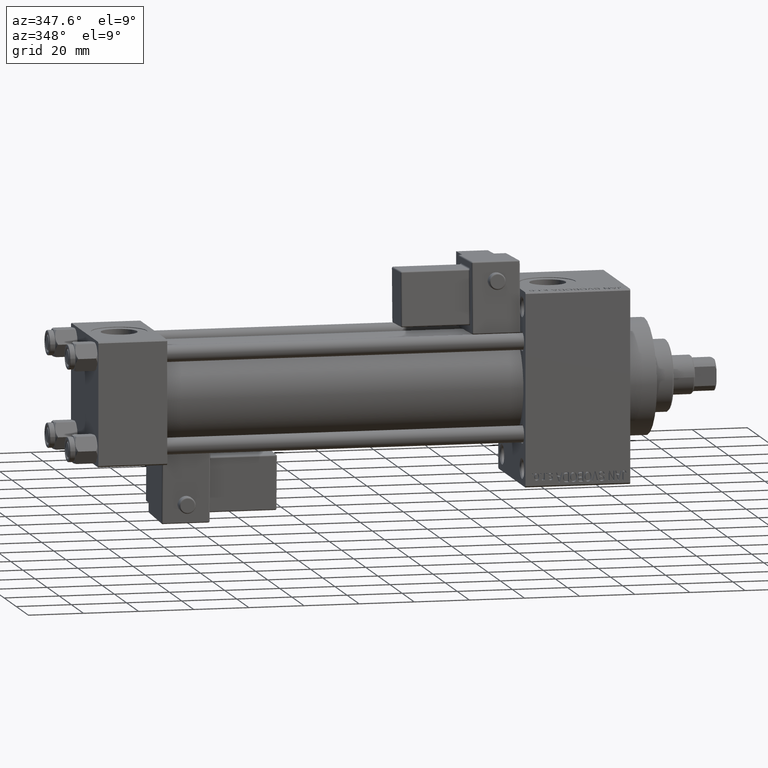
[diagram: clean part render]
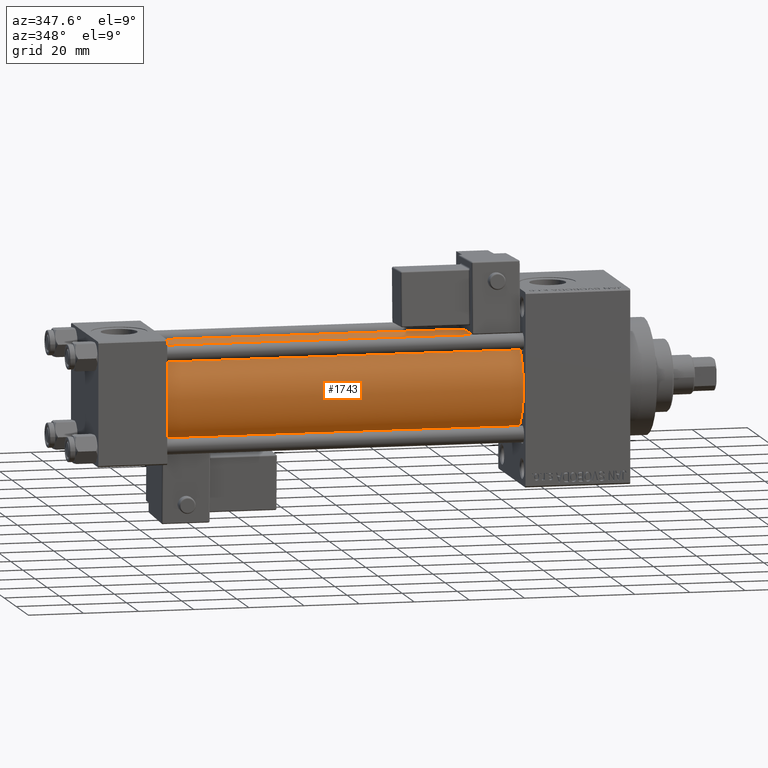
[diagram: same view with one face highlighted and labeled with its STEP entity id]
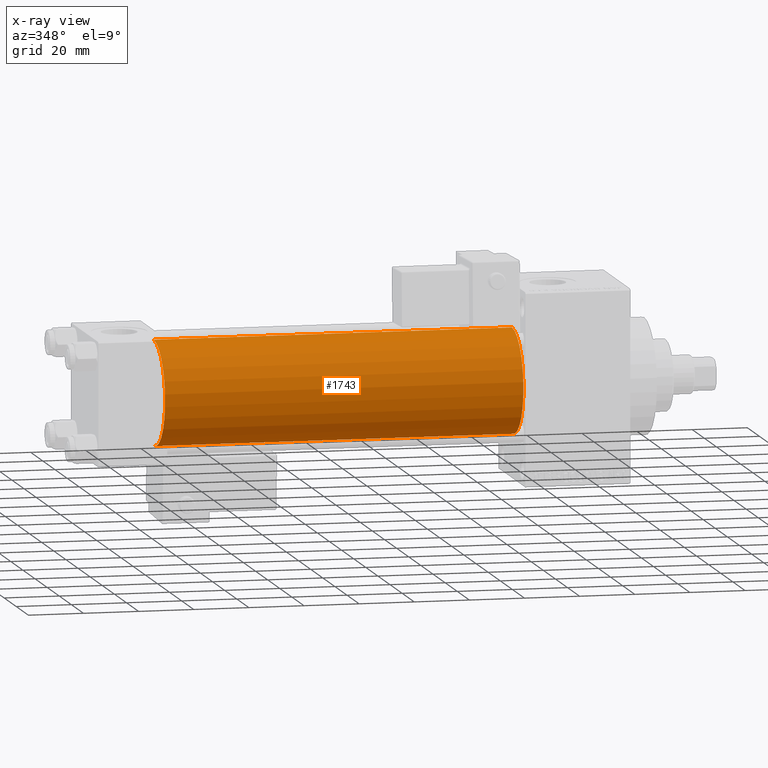
[diagram: x-ray of the same camera — body ghosted, the highlighted face saturated]
A machine part, auxiliary view. The second image highlights one B-rep face of the part: STEP entity #1743.
The next image is the same camera in x-ray: the body ghosted, the highlighted face saturated — about 0% of this face is hidden behind the body in this view.
In plain terms, the highlighted cylindrical surface (partial cylindrical patch) has radius 19 mm, axis along (-1, -0, -0).
Its self-contained STEP definition (entity closure, byte-faithful):
#1318 = DIRECTION ( 'NONE',  ( 0.000000000000000000, 0.000000000000000000, 1.000000000000000000 ) ) ;
#1567 = FACE_OUTER_BOUND ( 'NONE', #13857, .T. ) ;
#1743 = ADVANCED_FACE ( 'NONE', ( #1567 ), #39510, .T. ) ;
#3081 = ORIENTED_EDGE ( 'NONE', *, *, #29202, .F. ) ;
#3516 = CARTESIAN_POINT ( 'NONE',  ( 24.99999999999999289, -2.752562955852396712E-16, -19.00000000000000000 ) ) ;
#10266 = CIRCLE ( 'NONE', #32552, 19.00000000000000000 ) ;
#12329 = VERTEX_POINT ( 'NONE', #3516 ) ;
#13158 = LINE ( 'NONE', #16410, #41144 ) ;
#13857 = EDGE_LOOP ( 'NONE', ( #34883, #3081, #35998, #25588 ) ) ;
#15344 = CARTESIAN_POINT ( 'NONE',  ( 155.0000000000000000, -2.752562955852396712E-16, -19.00000000000000000 ) ) ;
#16053 = CARTESIAN_POINT ( 'NONE',  ( 155.0000000000000000, -2.602085213965210642E-15, 19.00000000000000000 ) ) ;
#16410 = CARTESIAN_POINT ( 'NONE',  ( 155.0000000000000000, -2.752562955852396712E-16, -19.00000000000000000 ) ) ;
#19566 = VERTEX_POINT ( 'NONE', #29091 ) ;
#19896 = DIRECTION ( 'NONE',  ( 0.000000000000000000, 0.000000000000000000, 1.000000000000000000 ) ) ;
#20378 = EDGE_CURVE ( 'NONE', #45179, #12329, #13158, .T. ) ;
#21911 = VERTEX_POINT ( 'NONE', #43263 ) ;
#22254 = AXIS2_PLACEMENT_3D ( 'NONE', #35108, #26887, #23402 ) ;
#23402 = DIRECTION ( 'NONE',  ( 0.000000000000000000, 0.000000000000000000, -1.000000000000000000 ) ) ;
#25588 = ORIENTED_EDGE ( 'NONE', *, *, #28364, .T. ) ;
#26887 = DIRECTION ( 'NONE',  ( 1.000000000000000000, 0.000000000000000000, 0.000000000000000000 ) ) ;
#28364 = EDGE_CURVE ( 'NONE', #21911, #12329, #10266, .T. ) ;
#29091 = CARTESIAN_POINT ( 'NONE',  ( 155.0000000000000000, -2.602085213965210642E-15, 19.00000000000000000 ) ) ;
#29202 = EDGE_CURVE ( 'NONE', #19566, #45179, #30207, .T. ) ;
#30207 = CIRCLE ( 'NONE', #22254, 19.00000000000000000 ) ;
#30676 = EDGE_CURVE ( 'NONE', #19566, #21911, #35007, .T. ) ;
#32266 = CARTESIAN_POINT ( 'NONE',  ( 155.0000000000000000, -2.602085213965210642E-15, 0.000000000000000000 ) ) ;
#32552 = AXIS2_PLACEMENT_3D ( 'NONE', #38098, #46608, #19896 ) ;
#34883 = ORIENTED_EDGE ( 'NONE', *, *, #20378, .F. ) ;
#35007 = LINE ( 'NONE', #16053, #44647 ) ;
#35108 = CARTESIAN_POINT ( 'NONE',  ( 155.0000000000000000, -2.602085213965210642E-15, 0.000000000000000000 ) ) ;
#35998 = ORIENTED_EDGE ( 'NONE', *, *, #30676, .T. ) ;
#38098 = CARTESIAN_POINT ( 'NONE',  ( 24.99999999999999289, -2.602085213965210642E-15, 0.000000000000000000 ) ) ;
#38962 = AXIS2_PLACEMENT_3D ( 'NONE', #32266, #43764, #1318 ) ;
#39510 = CYLINDRICAL_SURFACE ( 'NONE', #38962, 19.00000000000000000 ) ;
#39592 = DIRECTION ( 'NONE',  ( -1.000000000000000000, -0.000000000000000000, -0.000000000000000000 ) ) ;
#41144 = VECTOR ( 'NONE', #39592, 1000.000000000000000 ) ;
#43263 = CARTESIAN_POINT ( 'NONE',  ( 24.99999999999999289, -2.602085213965210642E-15, 19.00000000000000000 ) ) ;
#43764 = DIRECTION ( 'NONE',  ( -1.000000000000000000, -0.000000000000000000, -0.000000000000000000 ) ) ;
#44647 = VECTOR ( 'NONE', #46017, 1000.000000000000000 ) ;
#45179 = VERTEX_POINT ( 'NONE', #15344 ) ;
#46017 = DIRECTION ( 'NONE',  ( -1.000000000000000000, -0.000000000000000000, -0.000000000000000000 ) ) ;
#46608 = DIRECTION ( 'NONE',  ( 1.000000000000000000, -0.000000000000000000, 0.000000000000000000 ) ) ;